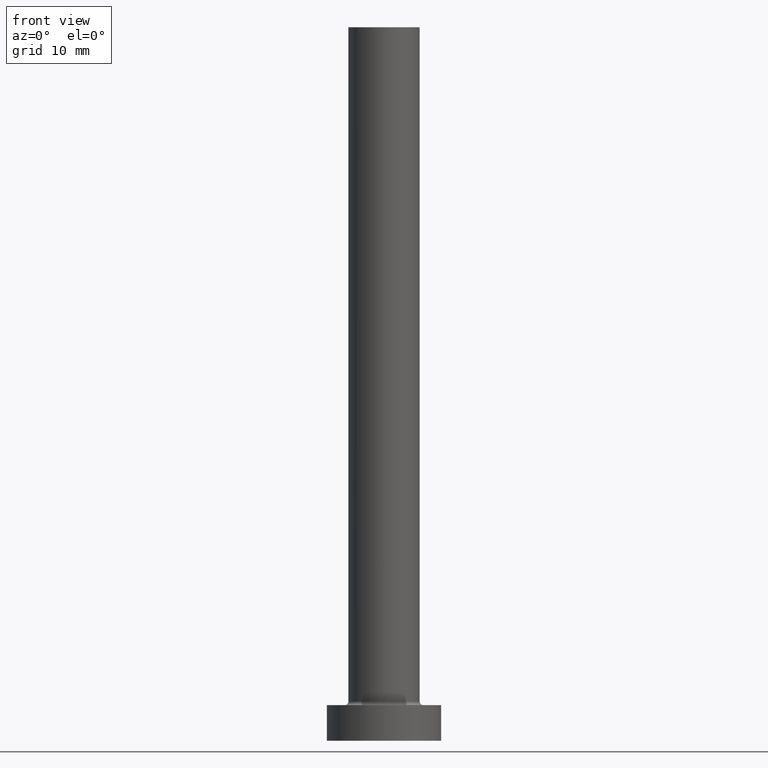
[diagram: clean part render]
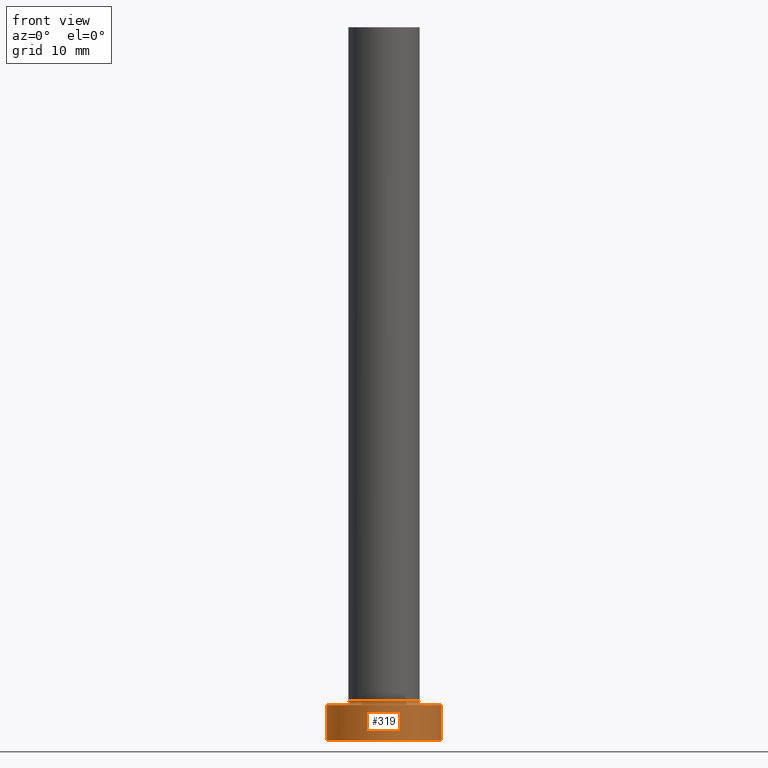
[diagram: same view with one face highlighted and labeled with its STEP entity id]
A machine part, front view. The second image highlights one B-rep face of the part: STEP entity #319.
In plain terms, the highlighted cylindrical surface (partial cylindrical patch) has radius 8 mm, axis along (-0, -0, -1).
Its self-contained STEP definition (entity closure, byte-faithful):
#32 = CARTESIAN_POINT ( 'NONE',  ( 8.000000000000000000, 9.797174393178825657E-16, 0.000000000000000000 ) ) ;
#33 = CARTESIAN_POINT ( 'NONE',  ( 8.000000000000000000, 9.797174393178825657E-16, 5.000000000000000000 ) ) ;
#35 = AXIS2_PLACEMENT_3D ( 'NONE', #180, #429, #139 ) ;
#60 = CYLINDRICAL_SURFACE ( 'NONE', #396, 8.000000000000000000 ) ;
#61 = DIRECTION ( 'NONE',  ( -1.000000000000000000, 0.000000000000000000, 0.000000000000000000 ) ) ;
#63 = EDGE_CURVE ( 'NONE', #267, #321, #221, .T. ) ;
#71 = DIRECTION ( 'NONE',  ( -0.000000000000000000, -0.000000000000000000, -1.000000000000000000 ) ) ;
#89 = CARTESIAN_POINT ( 'NONE',  ( -8.000000000000000000, 0.000000000000000000, 0.000000000000000000 ) ) ;
#109 = CARTESIAN_POINT ( 'NONE',  ( -8.000000000000000000, 0.000000000000000000, 5.000000000000000000 ) ) ;
#113 = LINE ( 'NONE', #33, #461 ) ;
#114 = DIRECTION ( 'NONE',  ( 0.000000000000000000, 0.000000000000000000, 1.000000000000000000 ) ) ;
#121 = AXIS2_PLACEMENT_3D ( 'NONE', #185, #114, #395 ) ;
#127 = CARTESIAN_POINT ( 'NONE',  ( -8.000000000000000000, 0.000000000000000000, 5.000000000000000000 ) ) ;
#139 = DIRECTION ( 'NONE',  ( 1.000000000000000000, 0.000000000000000000, 0.000000000000000000 ) ) ;
#172 = ORIENTED_EDGE ( 'NONE', *, *, #442, .F. ) ;
#180 = CARTESIAN_POINT ( 'NONE',  ( 0.000000000000000000, 0.000000000000000000, 5.000000000000000000 ) ) ;
#185 = CARTESIAN_POINT ( 'NONE',  ( 0.000000000000000000, 0.000000000000000000, 0.000000000000000000 ) ) ;
#206 = CARTESIAN_POINT ( 'NONE',  ( 8.000000000000000000, 9.797174393178825657E-16, 5.000000000000000000 ) ) ;
#208 = ORIENTED_EDGE ( 'NONE', *, *, #406, .F. ) ;
#221 = CIRCLE ( 'NONE', #121, 8.000000000000000000 ) ;
#228 = CIRCLE ( 'NONE', #35, 8.000000000000000000 ) ;
#240 = DIRECTION ( 'NONE',  ( -0.000000000000000000, -0.000000000000000000, -1.000000000000000000 ) ) ;
#247 = VERTEX_POINT ( 'NONE', #206 ) ;
#267 = VERTEX_POINT ( 'NONE', #89 ) ;
#282 = VERTEX_POINT ( 'NONE', #127 ) ;
#285 = VECTOR ( 'NONE', #71, 1000.000000000000000 ) ;
#319 = ADVANCED_FACE ( 'NONE', ( #412 ), #60, .T. ) ;
#321 = VERTEX_POINT ( 'NONE', #32 ) ;
#369 = CARTESIAN_POINT ( 'NONE',  ( 0.000000000000000000, 0.000000000000000000, 5.000000000000000000 ) ) ;
#379 = ORIENTED_EDGE ( 'NONE', *, *, #63, .T. ) ;
#392 = LINE ( 'NONE', #109, #285 ) ;
#395 = DIRECTION ( 'NONE',  ( 1.000000000000000000, 0.000000000000000000, 0.000000000000000000 ) ) ;
#396 = AXIS2_PLACEMENT_3D ( 'NONE', #369, #240, #61 ) ;
#406 = EDGE_CURVE ( 'NONE', #282, #247, #228, .T. ) ;
#411 = EDGE_LOOP ( 'NONE', ( #172, #208, #417, #379 ) ) ;
#412 = FACE_OUTER_BOUND ( 'NONE', #411, .T. ) ;
#417 = ORIENTED_EDGE ( 'NONE', *, *, #459, .T. ) ;
#420 = DIRECTION ( 'NONE',  ( -0.000000000000000000, -0.000000000000000000, -1.000000000000000000 ) ) ;
#429 = DIRECTION ( 'NONE',  ( 0.000000000000000000, 0.000000000000000000, 1.000000000000000000 ) ) ;
#442 = EDGE_CURVE ( 'NONE', #247, #321, #113, .T. ) ;
#459 = EDGE_CURVE ( 'NONE', #282, #267, #392, .T. ) ;
#461 = VECTOR ( 'NONE', #420, 1000.000000000000000 ) ;